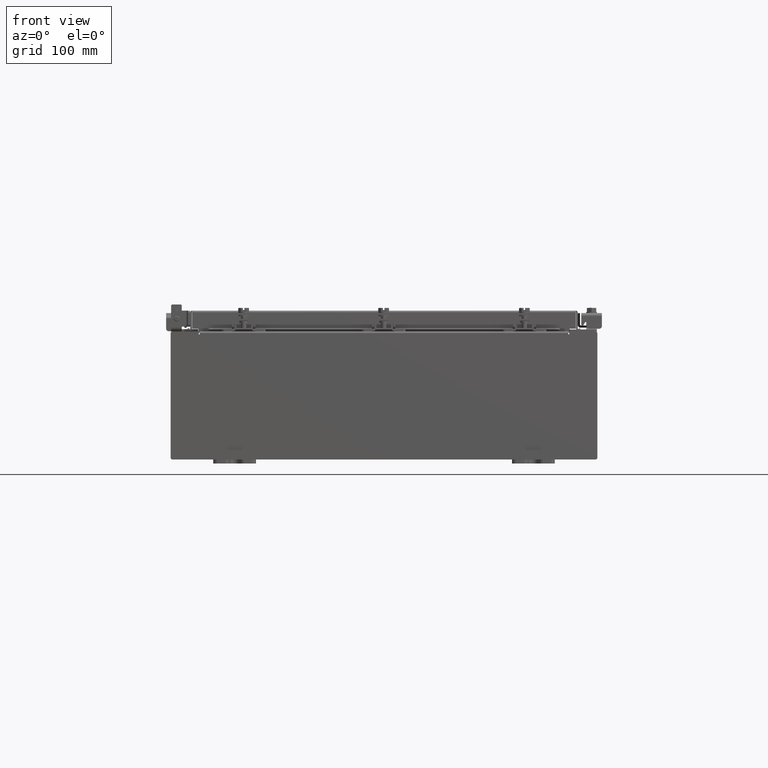
[diagram: clean part render]
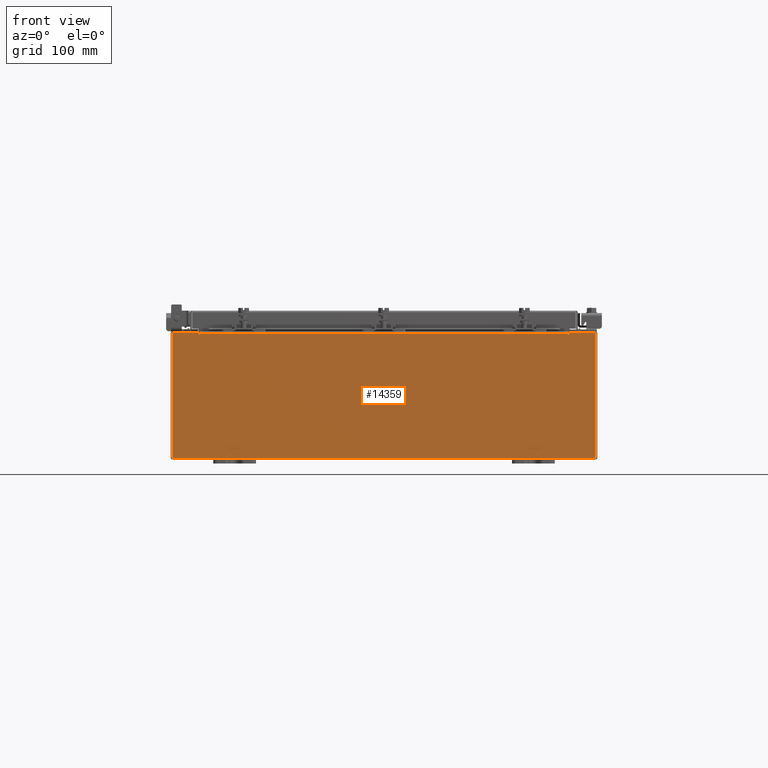
[diagram: same view with one face highlighted and labeled with its STEP entity id]
A machine part, front view. The second image highlights one B-rep face of the part: STEP entity #14359.
In plain terms, the highlighted planar face has unit normal (-0, 1, -0).
Its self-contained STEP definition (entity closure, byte-faithful):
#121 = EDGE_CURVE ( 'NONE', #11942, #7257, #13131, .T. ) ;
#236 = AXIS2_PLACEMENT_3D ( 'NONE', #18316, #7859, #20057 ) ;
#527 = DIRECTION ( 'NONE',  ( -6.510859170600007400E-014, 0.0000000000000000000, -1.000000000000000000 ) ) ;
#660 = DIRECTION ( 'NONE',  ( -0.0000000000000000000, 1.000000000000000000, -0.0000000000000000000 ) ) ;
#791 = VERTEX_POINT ( 'NONE', #19238 ) ;
#939 = DIRECTION ( 'NONE',  ( 0.0000000000000000000, -0.0000000000000000000, -1.000000000000000000 ) ) ;
#1114 = CARTESIAN_POINT ( 'NONE',  ( 8.637200000000000000, 0.0000000000000000000, 0.0000000000000000000 ) ) ;
#1246 = VERTEX_POINT ( 'NONE', #10895 ) ;
#1267 = LINE ( 'NONE', #6429, #8853 ) ;
#1337 = EDGE_CURVE ( 'NONE', #2258, #7257, #2190, .T. ) ;
#1373 = DIRECTION ( 'NONE',  ( 1.000000000000000000, 0.0000000000000000000, 0.0000000000000000000 ) ) ;
#1511 = CARTESIAN_POINT ( 'NONE',  ( 9.925300000000000000, 0.0000000000000000000, 2.925300000000000500 ) ) ;
#1904 = EDGE_CURVE ( 'NONE', #14581, #7292, #2168, .T. ) ;
#2168 = LINE ( 'NONE', #7961, #20684 ) ;
#2190 = LINE ( 'NONE', #1114, #10874 ) ;
#2258 = VERTEX_POINT ( 'NONE', #12385 ) ;
#2300 = AXIS2_PLACEMENT_3D ( 'NONE', #11038, #660, #12815 ) ;
#2323 = AXIS2_PLACEMENT_3D ( 'NONE', #9576, #11326, #939 ) ;
#2329 = CARTESIAN_POINT ( 'NONE',  ( 8.674549999999813500, -0.0000000000000000000, -5.647877341832707700E-013 ) ) ;
#3234 = ORIENTED_EDGE ( 'NONE', *, *, #14552, .T. ) ;
#3278 = VECTOR ( 'NONE', #21634, 39.37007874015748100 ) ;
#4221 = CARTESIAN_POINT ( 'NONE',  ( -8.674549999999996400, 0.0000000000000000000, 2.874950000000000600 ) ) ;
#4276 = CARTESIAN_POINT ( 'NONE',  ( -9.925300000000000000, 0.0000000000000000000, 2.925300000000000500 ) ) ;
#4335 = CARTESIAN_POINT ( 'NONE',  ( -8.674549999999996400, 0.0000000000000000000, 2.925300000000000500 ) ) ;
#4991 = DIRECTION ( 'NONE',  ( 0.0000000000000000000, 0.0000000000000000000, -1.000000000000000000 ) ) ;
#5087 = VECTOR ( 'NONE', #9385, 39.37007874015748100 ) ;
#6429 = CARTESIAN_POINT ( 'NONE',  ( -9.925300000000000000, 0.0000000000000000000, 2.925300000000000500 ) ) ;
#6790 = EDGE_CURVE ( 'NONE', #791, #10544, #15205, .T. ) ;
#7009 = VECTOR ( 'NONE', #4991, 39.37007874015748100 ) ;
#7257 = VERTEX_POINT ( 'NONE', #19404 ) ;
#7292 = VERTEX_POINT ( 'NONE', #10778 ) ;
#7685 = ORIENTED_EDGE ( 'NONE', *, *, #8414, .F. ) ;
#7859 = DIRECTION ( 'NONE',  ( -0.0000000000000000000, 1.000000000000000000, -0.0000000000000000000 ) ) ;
#7961 = CARTESIAN_POINT ( 'NONE',  ( -9.925300000000000000, 0.0000000000000000000, -2.925299999999999600 ) ) ;
#8414 = EDGE_CURVE ( 'NONE', #791, #14781, #14029, .T. ) ;
#8627 = VECTOR ( 'NONE', #16478, 39.37007874015748100 ) ;
#8631 = VECTOR ( 'NONE', #1373, 39.37007874015748100 ) ;
#8853 = VECTOR ( 'NONE', #15213, 39.37007874015748100 ) ;
#9268 = ORIENTED_EDGE ( 'NONE', *, *, #14279, .F. ) ;
#9385 = DIRECTION ( 'NONE',  ( 0.0000000000000000000, 0.0000000000000000000, -1.000000000000000000 ) ) ;
#9576 = CARTESIAN_POINT ( 'NONE',  ( 0.0000000000000000000, 0.0000000000000000000, 0.0000000000000000000 ) ) ;
#9613 = CARTESIAN_POINT ( 'NONE',  ( 9.925300000000000000, 0.0000000000000000000, 2.925300000000000500 ) ) ;
#10544 = VERTEX_POINT ( 'NONE', #9613 ) ;
#10778 = CARTESIAN_POINT ( 'NONE',  ( -9.925300000000000000, 0.0000000000000000000, -2.925299999999999600 ) ) ;
#10874 = VECTOR ( 'NONE', #13340, 39.37007874015748100 ) ;
#10895 = CARTESIAN_POINT ( 'NONE',  ( -8.637199999999996400, -0.0000000000000000000, 2.874950000000000600 ) ) ;
#11038 = CARTESIAN_POINT ( 'NONE',  ( -8.655874999999996400, 0.0000000000000000000, 2.874950000000000600 ) ) ;
#11070 = CARTESIAN_POINT ( 'NONE',  ( -8.637199999999996400, -0.0000000000000000000, 0.0000000000000000000 ) ) ;
#11326 = DIRECTION ( 'NONE',  ( 0.0000000000000000000, -1.000000000000000000, 0.0000000000000000000 ) ) ;
#11631 = ORIENTED_EDGE ( 'NONE', *, *, #13274, .F. ) ;
#11766 = CARTESIAN_POINT ( 'NONE',  ( -9.925300000000000000, 0.0000000000000000000, 2.925300000000000500 ) ) ;
#11942 = VERTEX_POINT ( 'NONE', #12619 ) ;
#12230 = VERTEX_POINT ( 'NONE', #18633 ) ;
#12385 = CARTESIAN_POINT ( 'NONE',  ( 8.637200000000000000, 0.0000000000000000000, 2.874950000000000600 ) ) ;
#12400 = EDGE_LOOP ( 'NONE', ( #9268, #19983, #19703, #18155, #21884, #11631, #7685, #15315, #22514, #20328, #13007, #3234 ) ) ;
#12619 = CARTESIAN_POINT ( 'NONE',  ( -8.637199999999996400, 1.024442997624098700E-016, 2.912300000000000600 ) ) ;
#12815 = DIRECTION ( 'NONE',  ( 0.0000000000000000000, 0.0000000000000000000, -1.000000000000000000 ) ) ;
#13007 = ORIENTED_EDGE ( 'NONE', *, *, #15872, .T. ) ;
#13036 = LINE ( 'NONE', #16394, #21760 ) ;
#13131 = LINE ( 'NONE', #14065, #3278 ) ;
#13274 = EDGE_CURVE ( 'NONE', #14781, #2258, #15013, .T. ) ;
#13340 = DIRECTION ( 'NONE',  ( 0.0000000000000000000, 0.0000000000000000000, 1.000000000000000000 ) ) ;
#13475 = VECTOR ( 'NONE', #527, 39.37007874015748100 ) ;
#14029 = LINE ( 'NONE', #2329, #13475 ) ;
#14065 = CARTESIAN_POINT ( 'NONE',  ( -8.637200000000000000, 1.024442997624098700E-016, 2.912300000000000600 ) ) ;
#14279 = EDGE_CURVE ( 'NONE', #19918, #17186, #13036, .T. ) ;
#14359 = ADVANCED_FACE ( 'NONE', ( #16029 ), #16525, .F. ) ;
#14376 = LINE ( 'NONE', #11070, #5087 ) ;
#14552 = EDGE_CURVE ( 'NONE', #12230, #17186, #22025, .T. ) ;
#14581 = VERTEX_POINT ( 'NONE', #17015 ) ;
#14608 = EDGE_CURVE ( 'NONE', #10544, #14581, #20920, .T. ) ;
#14781 = VERTEX_POINT ( 'NONE', #17542 ) ;
#15013 = CIRCLE ( 'NONE', #236, 0.01867500000000003900 ) ;
#15026 = EDGE_CURVE ( 'NONE', #11942, #1246, #14376, .T. ) ;
#15205 = LINE ( 'NONE', #4276, #8627 ) ;
#15213 = DIRECTION ( 'NONE',  ( -0.0000000000000000000, -0.0000000000000000000, 1.000000000000000000 ) ) ;
#15315 = ORIENTED_EDGE ( 'NONE', *, *, #6790, .T. ) ;
#15872 = EDGE_CURVE ( 'NONE', #7292, #12230, #1267, .T. ) ;
#16029 = FACE_OUTER_BOUND ( 'NONE', #12400, .T. ) ;
#16394 = CARTESIAN_POINT ( 'NONE',  ( -8.674549999999996400, -0.0000000000000000000, 0.0000000000000000000 ) ) ;
#16478 = DIRECTION ( 'NONE',  ( 1.000000000000000000, 0.0000000000000000000, 0.0000000000000000000 ) ) ;
#16525 = PLANE ( 'NONE',  #2323 ) ;
#17015 = CARTESIAN_POINT ( 'NONE',  ( 9.925300000000000000, 0.0000000000000000000, -2.925299999999999600 ) ) ;
#17186 = VERTEX_POINT ( 'NONE', #4335 ) ;
#17542 = CARTESIAN_POINT ( 'NONE',  ( 8.674550000000000000, 0.0000000000000000000, 2.874950000000000600 ) ) ;
#17953 = DIRECTION ( 'NONE',  ( -1.000000000000000000, -0.0000000000000000000, -0.0000000000000000000 ) ) ;
#18128 = DIRECTION ( 'NONE',  ( 0.0000000000000000000, 0.0000000000000000000, 1.000000000000000000 ) ) ;
#18155 = ORIENTED_EDGE ( 'NONE', *, *, #121, .T. ) ;
#18316 = CARTESIAN_POINT ( 'NONE',  ( 8.655875000000000000, 0.0000000000000000000, 2.874950000000000600 ) ) ;
#18633 = CARTESIAN_POINT ( 'NONE',  ( -9.925300000000000000, 0.0000000000000000000, 2.925300000000000500 ) ) ;
#19238 = CARTESIAN_POINT ( 'NONE',  ( 8.674550000000001800, 0.0000000000000000000, 2.925300000000000500 ) ) ;
#19404 = CARTESIAN_POINT ( 'NONE',  ( 8.637200000000000000, 0.0000000000000000000, 2.912300000000000600 ) ) ;
#19703 = ORIENTED_EDGE ( 'NONE', *, *, #15026, .F. ) ;
#19904 = EDGE_CURVE ( 'NONE', #1246, #19918, #20575, .T. ) ;
#19918 = VERTEX_POINT ( 'NONE', #4221 ) ;
#19983 = ORIENTED_EDGE ( 'NONE', *, *, #19904, .F. ) ;
#20057 = DIRECTION ( 'NONE',  ( 0.0000000000000000000, 0.0000000000000000000, -1.000000000000000000 ) ) ;
#20328 = ORIENTED_EDGE ( 'NONE', *, *, #1904, .T. ) ;
#20575 = CIRCLE ( 'NONE', #2300, 0.01867500000000003900 ) ;
#20684 = VECTOR ( 'NONE', #17953, 39.37007874015748100 ) ;
#20920 = LINE ( 'NONE', #1511, #7009 ) ;
#21634 = DIRECTION ( 'NONE',  ( 1.000000000000000000, 0.0000000000000000000, 0.0000000000000000000 ) ) ;
#21760 = VECTOR ( 'NONE', #18128, 39.37007874015748100 ) ;
#21884 = ORIENTED_EDGE ( 'NONE', *, *, #1337, .F. ) ;
#22025 = LINE ( 'NONE', #11766, #8631 ) ;
#22514 = ORIENTED_EDGE ( 'NONE', *, *, #14608, .T. ) ;